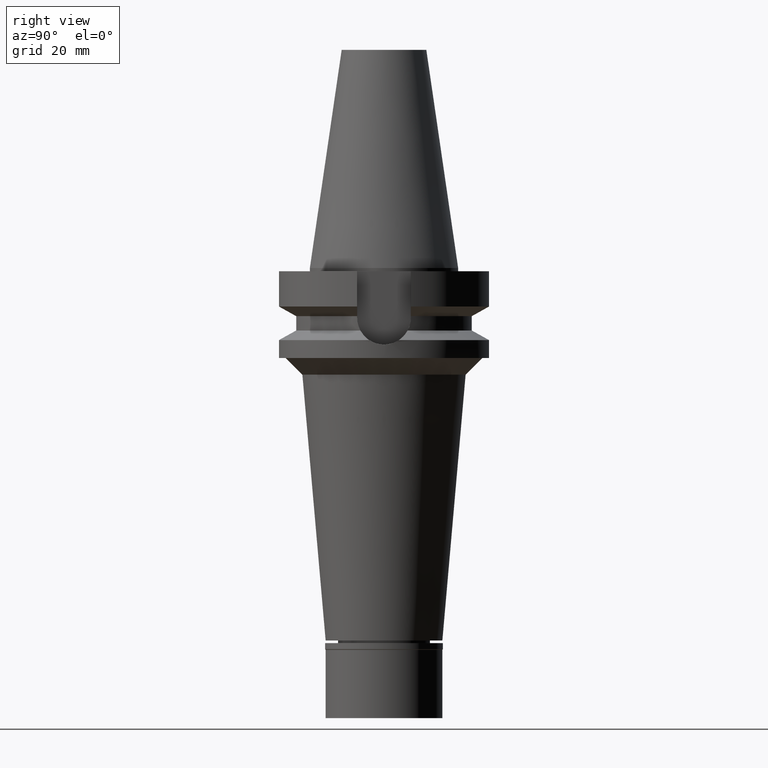
[diagram: clean part render]
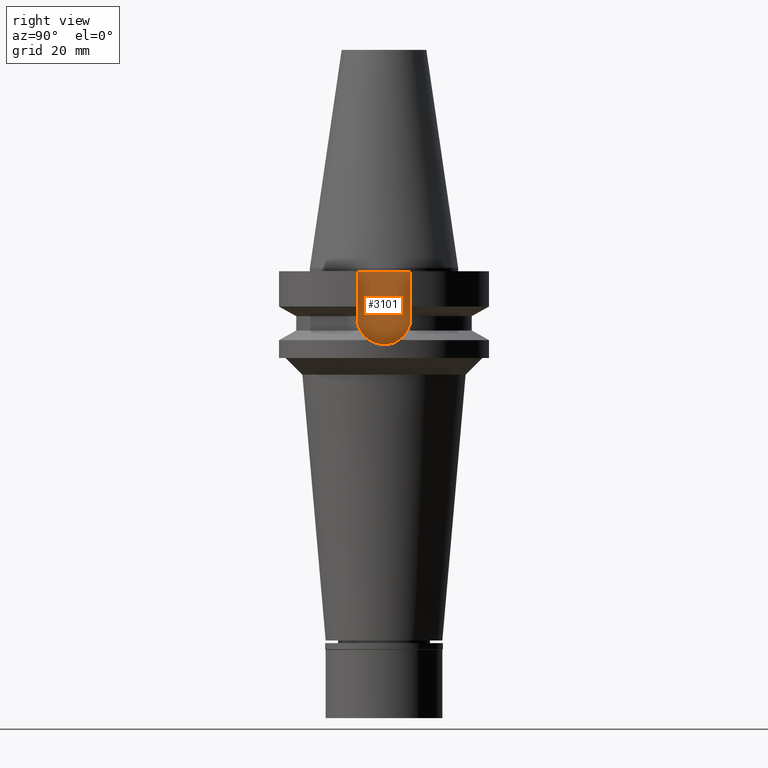
[diagram: same view with one face highlighted and labeled with its STEP entity id]
A machine part, right view. The second image highlights one B-rep face of the part: STEP entity #3101.
In plain terms, the highlighted planar face has unit normal (1, 0, 0).
Its self-contained STEP definition (entity closure, byte-faithful):
#49 = LINE ( 'NONE', #2725, #440 ) ;
#98 = FACE_OUTER_BOUND ( 'NONE', #1162, .T. ) ;
#130 = ORIENTED_EDGE ( 'NONE', *, *, #1611, .T. ) ;
#323 = CARTESIAN_POINT ( 'NONE',  ( 22.50000000000000000, 0.0000000000000000000, 0.0000000000000000000 ) ) ;
#430 = CIRCLE ( 'NONE', #1494, 8.050000000000000711 ) ;
#440 = VECTOR ( 'NONE', #536, 1000.000000000000000 ) ;
#483 = CARTESIAN_POINT ( 'NONE',  ( 22.50000000000000000, 8.050000000000000711, -1.000000000000000000 ) ) ;
#487 = CARTESIAN_POINT ( 'NONE',  ( 22.50000000000000000, 8.050000000000000711, -14.94999999999999929 ) ) ;
#517 = VERTEX_POINT ( 'NONE', #1161 ) ;
#536 = DIRECTION ( 'NONE',  ( 0.0000000000000000000, 0.0000000000000000000, 1.000000000000000000 ) ) ;
#577 = AXIS2_PLACEMENT_3D ( 'NONE', #323, #1551, #2002 ) ;
#580 = CARTESIAN_POINT ( 'NONE',  ( 22.50000000000000000, 8.050000000000000711, -1.000000000000000000 ) ) ;
#608 = EDGE_CURVE ( 'NONE', #2189, #517, #430, .T. ) ;
#660 = LINE ( 'NONE', #1661, #1240 ) ;
#853 = DIRECTION ( 'NONE',  ( 0.0000000000000000000, 0.0000000000000000000, -1.000000000000000000 ) ) ;
#980 = CARTESIAN_POINT ( 'NONE',  ( 22.50000000000000000, -8.050000000000000711, -1.000000000000000000 ) ) ;
#1161 = CARTESIAN_POINT ( 'NONE',  ( 22.50000000000000000, -8.050000000000000711, -14.94999999999999929 ) ) ;
#1162 = EDGE_LOOP ( 'NONE', ( #1929, #2039, #1205, #130 ) ) ;
#1203 = DIRECTION ( 'NONE',  ( 0.0000000000000000000, -1.000000000000000000, 0.0000000000000000000 ) ) ;
#1205 = ORIENTED_EDGE ( 'NONE', *, *, #2979, .F. ) ;
#1240 = VECTOR ( 'NONE', #1203, 1000.000000000000000 ) ;
#1314 = DIRECTION ( 'NONE',  ( -1.000000000000000000, 0.0000000000000000000, 0.0000000000000000000 ) ) ;
#1330 = VERTEX_POINT ( 'NONE', #980 ) ;
#1494 = AXIS2_PLACEMENT_3D ( 'NONE', #2998, #1314, #853 ) ;
#1551 = DIRECTION ( 'NONE',  ( 1.000000000000000000, 0.0000000000000000000, 0.0000000000000000000 ) ) ;
#1580 = DIRECTION ( 'NONE',  ( 0.0000000000000000000, 0.0000000000000000000, -1.000000000000000000 ) ) ;
#1611 = EDGE_CURVE ( 'NONE', #2948, #1330, #660, .T. ) ;
#1639 = VECTOR ( 'NONE', #1580, 1000.000000000000000 ) ;
#1661 = CARTESIAN_POINT ( 'NONE',  ( 22.50000000000000000, 8.050000000000000711, -1.000000000000000000 ) ) ;
#1785 = LINE ( 'NONE', #580, #1639 ) ;
#1886 = EDGE_CURVE ( 'NONE', #517, #1330, #49, .T. ) ;
#1929 = ORIENTED_EDGE ( 'NONE', *, *, #1886, .F. ) ;
#2002 = DIRECTION ( 'NONE',  ( 0.0000000000000000000, 1.000000000000000000, 0.0000000000000000000 ) ) ;
#2039 = ORIENTED_EDGE ( 'NONE', *, *, #608, .F. ) ;
#2189 = VERTEX_POINT ( 'NONE', #487 ) ;
#2725 = CARTESIAN_POINT ( 'NONE',  ( 22.50000000000000000, -8.050000000000000711, -14.94999999999999929 ) ) ;
#2789 = PLANE ( 'NONE',  #577 ) ;
#2948 = VERTEX_POINT ( 'NONE', #483 ) ;
#2979 = EDGE_CURVE ( 'NONE', #2948, #2189, #1785, .T. ) ;
#2998 = CARTESIAN_POINT ( 'NONE',  ( 22.50000000000000000, 0.0000000000000000000, -14.94999999999999929 ) ) ;
#3101 = ADVANCED_FACE ( 'NONE', ( #98 ), #2789, .T. ) ;